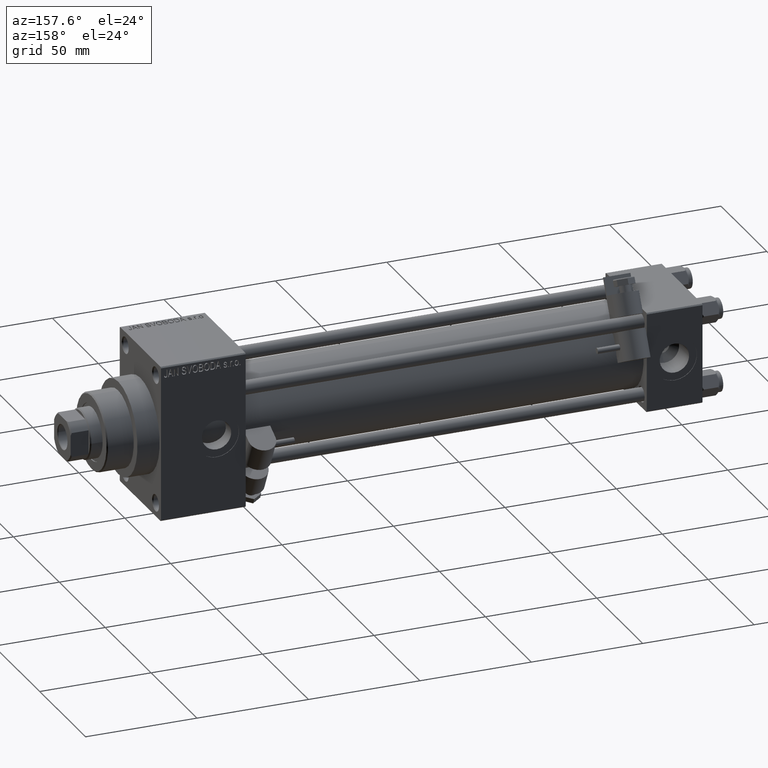
[diagram: clean part render]
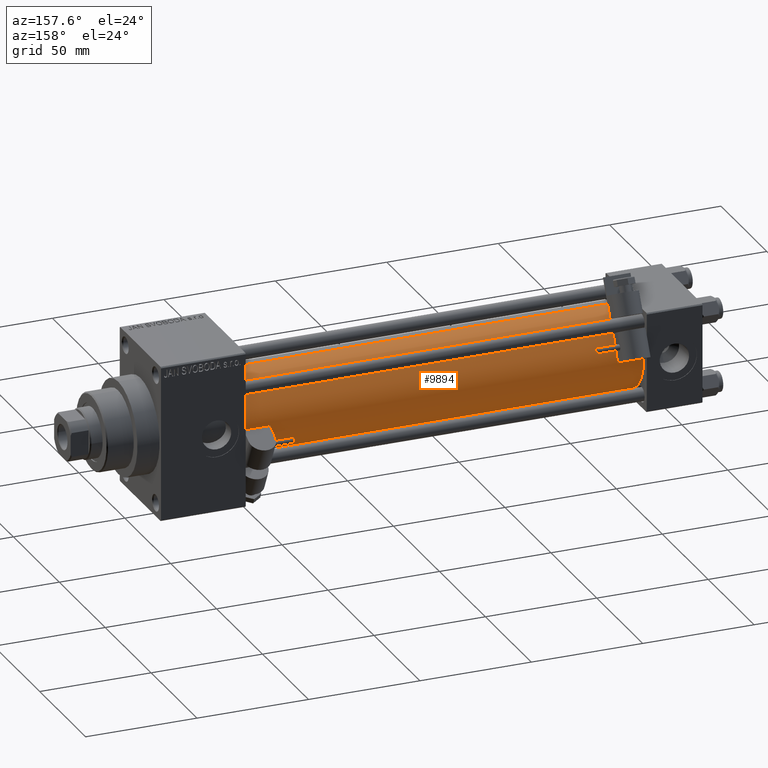
[diagram: same view with one face highlighted and labeled with its STEP entity id]
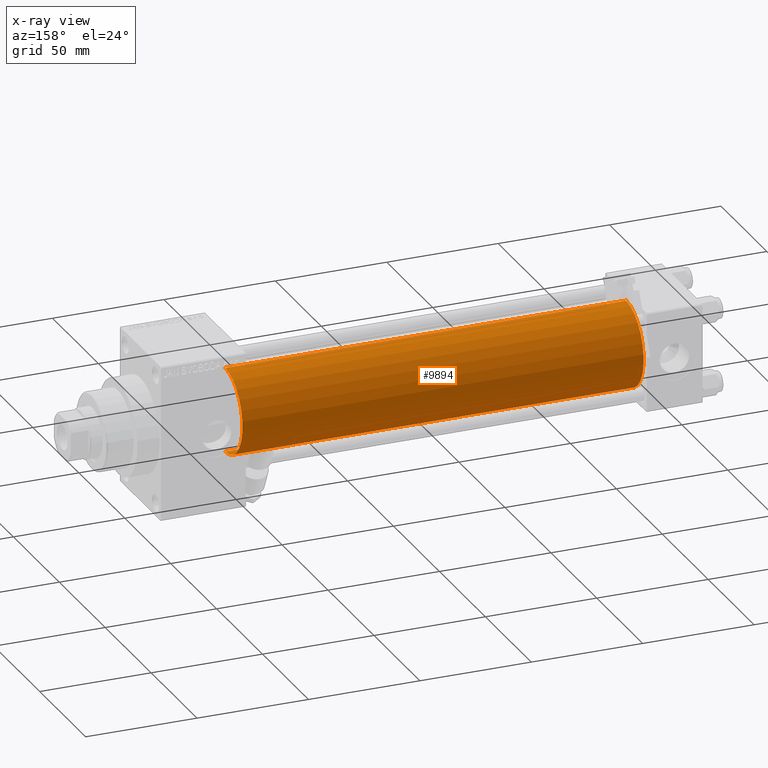
[diagram: x-ray of the same camera — body ghosted, the highlighted face saturated]
A machine part, auxiliary view. The second image highlights one B-rep face of the part: STEP entity #9894.
The next image is the same camera in x-ray: the body ghosted, the highlighted face saturated — about 0% of this face is hidden behind the body in this view.
In plain terms, the highlighted cylindrical surface (partial cylindrical patch) has radius 19 mm, axis along (-1, -0, -0).
Its self-contained STEP definition (entity closure, byte-faithful):
#2121 = ORIENTED_EDGE ( 'NONE', *, *, #19820, .T. ) ;
#3080 = DIRECTION ( 'NONE',  ( 0.000000000000000000, 0.000000000000000000, 1.000000000000000000 ) ) ;
#4131 = AXIS2_PLACEMENT_3D ( 'NONE', #32408, #10336, #14635 ) ;
#7069 = DIRECTION ( 'NONE',  ( 1.000000000000000000, 0.000000000000000000, 0.000000000000000000 ) ) ;
#8845 = EDGE_CURVE ( 'NONE', #30442, #27463, #49307, .T. ) ;
#8920 = VECTOR ( 'NONE', #26213, 1000.000000000000000 ) ;
#9894 = ADVANCED_FACE ( 'NONE', ( #40007 ), #20728, .T. ) ;
#10013 = CIRCLE ( 'NONE', #28608, 19.00000000000000000 ) ;
#10336 = DIRECTION ( 'NONE',  ( -1.000000000000000000, -0.000000000000000000, -0.000000000000000000 ) ) ;
#12772 = VECTOR ( 'NONE', #46882, 1000.000000000000000 ) ;
#13672 = CIRCLE ( 'NONE', #32300, 19.00000000000000000 ) ;
#14179 = ORIENTED_EDGE ( 'NONE', *, *, #49117, .F. ) ;
#14635 = DIRECTION ( 'NONE',  ( 0.000000000000000000, 0.000000000000000000, 1.000000000000000000 ) ) ;
#14734 = CARTESIAN_POINT ( 'NONE',  ( 24.99999999999999289, -2.602085213965210642E-15, 0.000000000000000000 ) ) ;
#19820 = EDGE_CURVE ( 'NONE', #29783, #27463, #10013, .T. ) ;
#20728 = CYLINDRICAL_SURFACE ( 'NONE', #4131, 19.00000000000000000 ) ;
#21839 = VERTEX_POINT ( 'NONE', #44132 ) ;
#23993 = CARTESIAN_POINT ( 'NONE',  ( 24.99999999999999289, -2.752562955852400657E-16, -19.00000000000000000 ) ) ;
#24871 = CARTESIAN_POINT ( 'NONE',  ( 205.0000000000000000, -2.602085213965210642E-15, 19.00000000000000000 ) ) ;
#25596 = LINE ( 'NONE', #38515, #12772 ) ;
#26213 = DIRECTION ( 'NONE',  ( -1.000000000000000000, -0.000000000000000000, -0.000000000000000000 ) ) ;
#27463 = VERTEX_POINT ( 'NONE', #32880 ) ;
#28608 = AXIS2_PLACEMENT_3D ( 'NONE', #14734, #37791, #3080 ) ;
#29783 = VERTEX_POINT ( 'NONE', #23993 ) ;
#30442 = VERTEX_POINT ( 'NONE', #24871 ) ;
#32300 = AXIS2_PLACEMENT_3D ( 'NONE', #41798, #7069, #40798 ) ;
#32408 = CARTESIAN_POINT ( 'NONE',  ( 205.0000000000000000, -2.602085213965210642E-15, 0.000000000000000000 ) ) ;
#32880 = CARTESIAN_POINT ( 'NONE',  ( 24.99999999999999289, -2.602085213965210642E-15, 19.00000000000000000 ) ) ;
#34586 = CARTESIAN_POINT ( 'NONE',  ( 205.0000000000000000, -2.602085213965210642E-15, 19.00000000000000000 ) ) ;
#35457 = ORIENTED_EDGE ( 'NONE', *, *, #8845, .F. ) ;
#37791 = DIRECTION ( 'NONE',  ( 1.000000000000000000, -0.000000000000000000, 0.000000000000000000 ) ) ;
#38515 = CARTESIAN_POINT ( 'NONE',  ( 205.0000000000000000, -2.752562955852400657E-16, -19.00000000000000000 ) ) ;
#40007 = FACE_OUTER_BOUND ( 'NONE', #42523, .T. ) ;
#40798 = DIRECTION ( 'NONE',  ( 0.000000000000000000, 0.000000000000000000, -1.000000000000000000 ) ) ;
#41798 = CARTESIAN_POINT ( 'NONE',  ( 205.0000000000000000, -2.602085213965210642E-15, 0.000000000000000000 ) ) ;
#42523 = EDGE_LOOP ( 'NONE', ( #14179, #45764, #2121, #35457 ) ) ;
#43151 = EDGE_CURVE ( 'NONE', #21839, #29783, #25596, .T. ) ;
#44132 = CARTESIAN_POINT ( 'NONE',  ( 205.0000000000000000, -2.752562955852400657E-16, -19.00000000000000000 ) ) ;
#45764 = ORIENTED_EDGE ( 'NONE', *, *, #43151, .T. ) ;
#46882 = DIRECTION ( 'NONE',  ( -1.000000000000000000, -0.000000000000000000, -0.000000000000000000 ) ) ;
#49117 = EDGE_CURVE ( 'NONE', #21839, #30442, #13672, .T. ) ;
#49307 = LINE ( 'NONE', #34586, #8920 ) ;